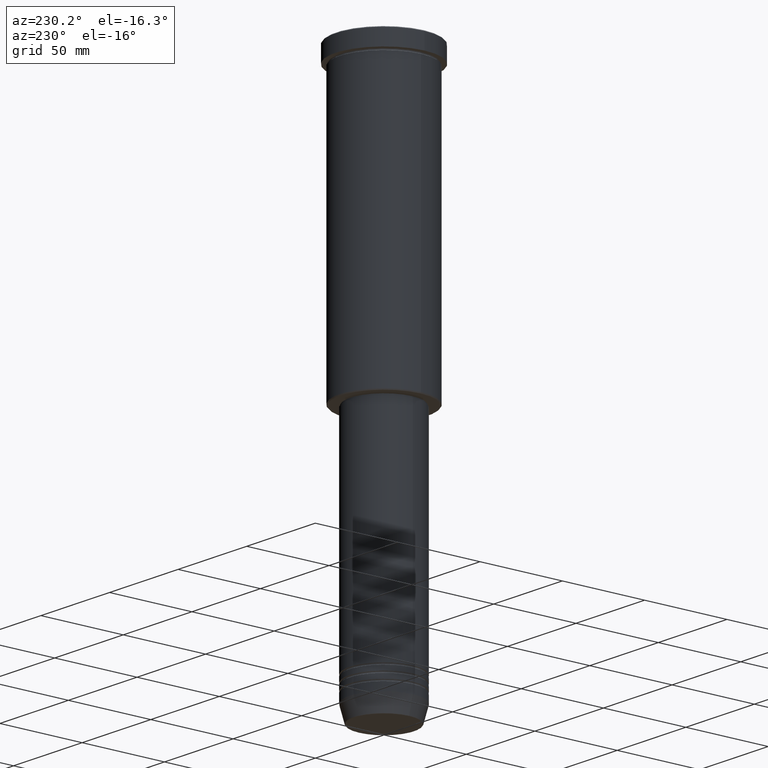
[diagram: clean part render]
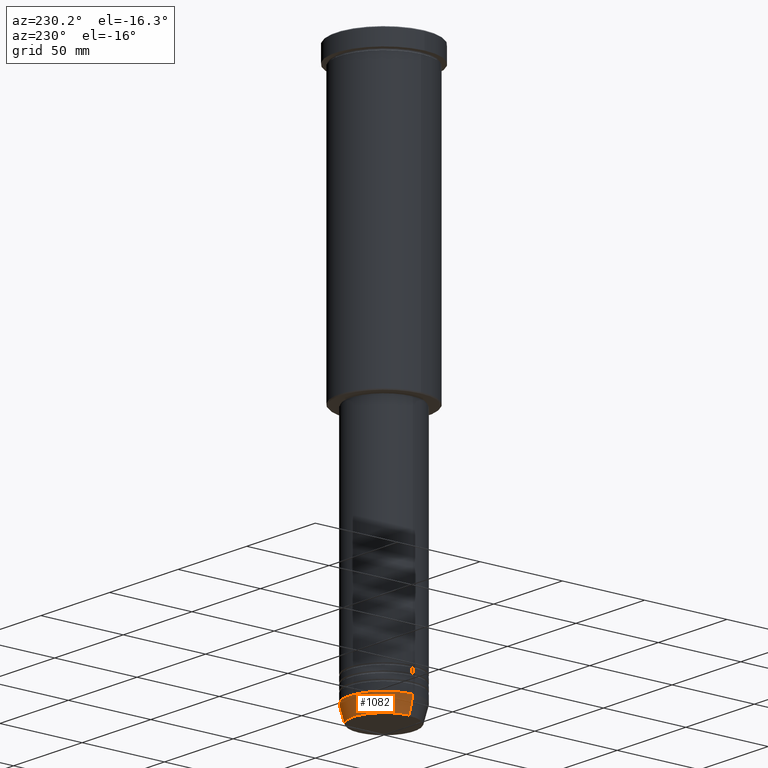
[diagram: same view with one face highlighted and labeled with its STEP entity id]
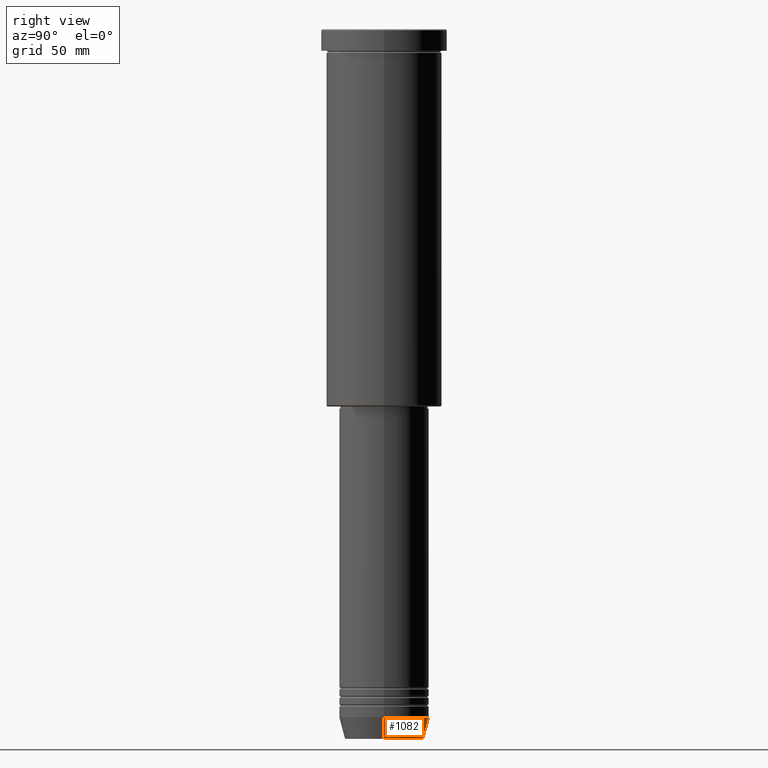
[diagram: same view with one face highlighted and labeled with its STEP entity id]
A machine part, auxiliary view. The second image highlights one B-rep face of the part: STEP entity #1082.
A second angle (right view) of the same face is appended — the face is thin or edge-on in the first view.
In plain terms, the highlighted conical surface has half-angle 15 deg.
Its self-contained STEP definition (entity closure, byte-faithful):
#7 = AXIS2_PLACEMENT_3D ( 'NONE', #573, #766, #952 ) ;
#16 = CARTESIAN_POINT ( 'NONE',  ( 21.00000000000000000, 0.000000000000000000, -321.0000000000000000 ) ) ;
#47 = VECTOR ( 'NONE', #1108, 1000.000000000000114 ) ;
#50 = ORIENTED_EDGE ( 'NONE', *, *, #973, .F. ) ;
#82 = EDGE_CURVE ( 'NONE', #814, #123, #294, .T. ) ;
#91 = DIRECTION ( 'NONE',  ( 1.000000000000000000, 0.000000000000000000, 0.000000000000000000 ) ) ;
#123 = VERTEX_POINT ( 'NONE', #665 ) ;
#151 = DIRECTION ( 'NONE',  ( -0.000000000000000000, -0.000000000000000000, 1.000000000000000000 ) ) ;
#210 = EDGE_CURVE ( 'NONE', #890, #349, #786, .T. ) ;
#213 = ORIENTED_EDGE ( 'NONE', *, *, #210, .T. ) ;
#241 = DIRECTION ( 'NONE',  ( 1.000000000000000000, 0.000000000000000000, 0.000000000000000000 ) ) ;
#246 = CARTESIAN_POINT ( 'NONE',  ( 0.000000000000000000, 0.000000000000000000, -330.6294095225512706 ) ) ;
#294 = CIRCLE ( 'NONE', #7, 21.00000000000000000 ) ;
#349 = VERTEX_POINT ( 'NONE', #1092 ) ;
#354 = VECTOR ( 'NONE', #411, 1000.000000000000114 ) ;
#362 = CARTESIAN_POINT ( 'NONE',  ( 18.41980749484383750, 0.000000000000000000, -330.6294095225512706 ) ) ;
#411 = DIRECTION ( 'NONE',  ( -0.2588190451025211836, 3.169619151431770488E-17, 0.9659258262890680902 ) ) ;
#497 = CARTESIAN_POINT ( 'NONE',  ( -21.00000000000000000, 2.571758278209441661E-15, -321.0000000000000000 ) ) ;
#573 = CARTESIAN_POINT ( 'NONE',  ( 0.000000000000000000, 0.000000000000000000, -321.0000000000000000 ) ) ;
#610 = AXIS2_PLACEMENT_3D ( 'NONE', #1124, #749, #91 ) ;
#665 = CARTESIAN_POINT ( 'NONE',  ( -21.00000000000000000, 2.571758278209441661E-15, -321.0000000000000000 ) ) ;
#671 = LINE ( 'NONE', #497, #354 ) ;
#702 = ORIENTED_EDGE ( 'NONE', *, *, #1144, .T. ) ;
#732 = AXIS2_PLACEMENT_3D ( 'NONE', #246, #151, #241 ) ;
#749 = DIRECTION ( 'NONE',  ( -0.000000000000000000, -0.000000000000000000, 1.000000000000000000 ) ) ;
#766 = DIRECTION ( 'NONE',  ( -0.000000000000000000, -0.000000000000000000, 1.000000000000000000 ) ) ;
#786 = CIRCLE ( 'NONE', #732, 18.41980749484383750 ) ;
#814 = VERTEX_POINT ( 'NONE', #1074 ) ;
#890 = VERTEX_POINT ( 'NONE', #362 ) ;
#911 = FACE_OUTER_BOUND ( 'NONE', #1051, .T. ) ;
#938 = LINE ( 'NONE', #16, #47 ) ;
#952 = DIRECTION ( 'NONE',  ( 1.000000000000000000, 0.000000000000000000, 0.000000000000000000 ) ) ;
#973 = EDGE_CURVE ( 'NONE', #890, #814, #938, .T. ) ;
#1051 = EDGE_LOOP ( 'NONE', ( #213, #702, #1157, #50 ) ) ;
#1074 = CARTESIAN_POINT ( 'NONE',  ( 21.00000000000000000, 0.000000000000000000, -321.0000000000000000 ) ) ;
#1082 = ADVANCED_FACE ( 'NONE', ( #911 ), #1099, .T. ) ;
#1092 = CARTESIAN_POINT ( 'NONE',  ( -18.41980749484383750, 2.413767053578267458E-15, -330.6294095225512706 ) ) ;
#1099 = CONICAL_SURFACE ( 'NONE', #610, 21.00000000000000000, 0.2617993877991499074 ) ;
#1108 = DIRECTION ( 'NONE',  ( 0.2588190451025211836, 0.000000000000000000, 0.9659258262890680902 ) ) ;
#1124 = CARTESIAN_POINT ( 'NONE',  ( 0.000000000000000000, 0.000000000000000000, -321.0000000000000000 ) ) ;
#1144 = EDGE_CURVE ( 'NONE', #349, #123, #671, .T. ) ;
#1157 = ORIENTED_EDGE ( 'NONE', *, *, #82, .F. ) ;